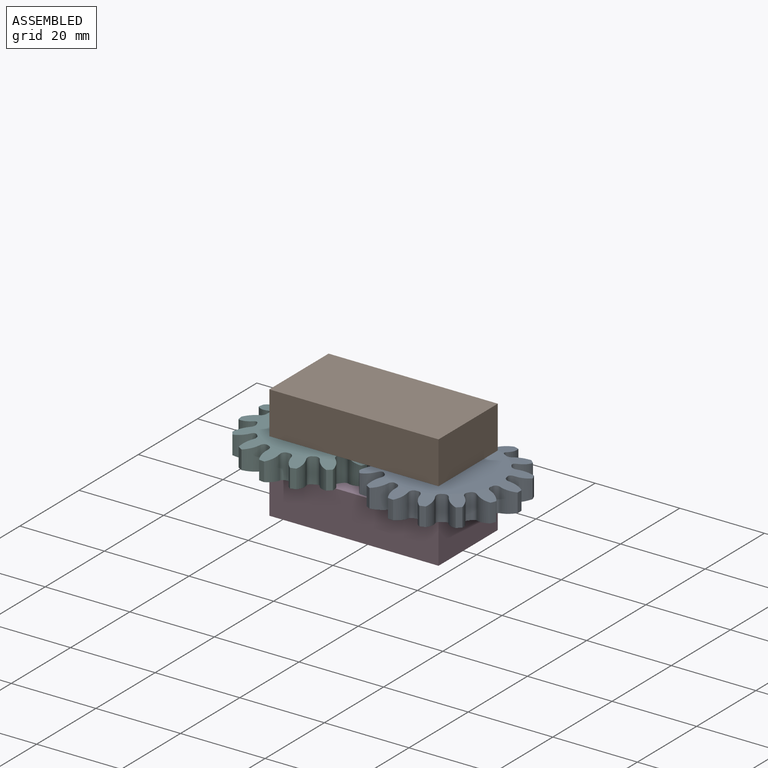
[diagram: assembled view]
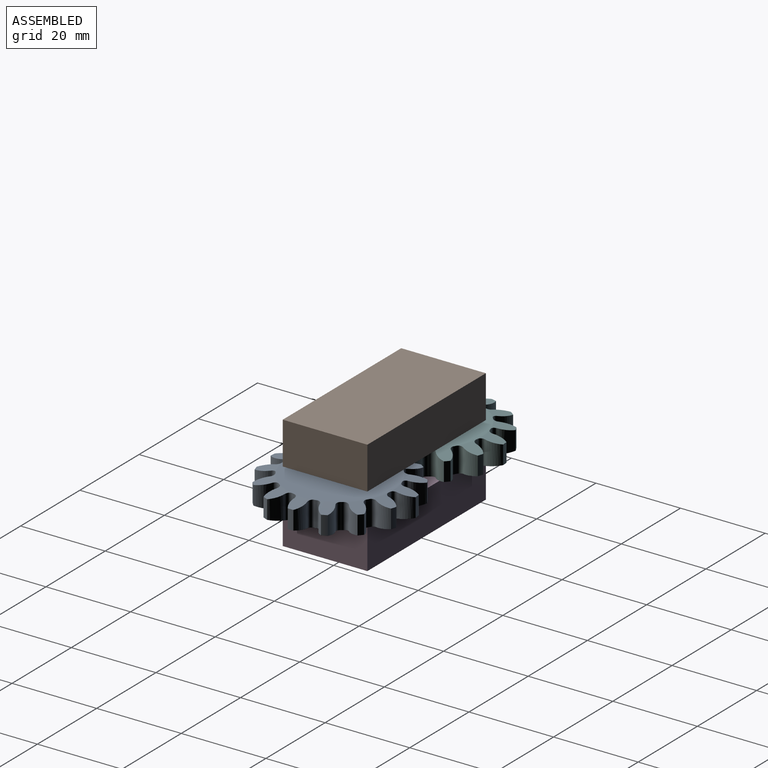
[diagram: assembled view, second angle]
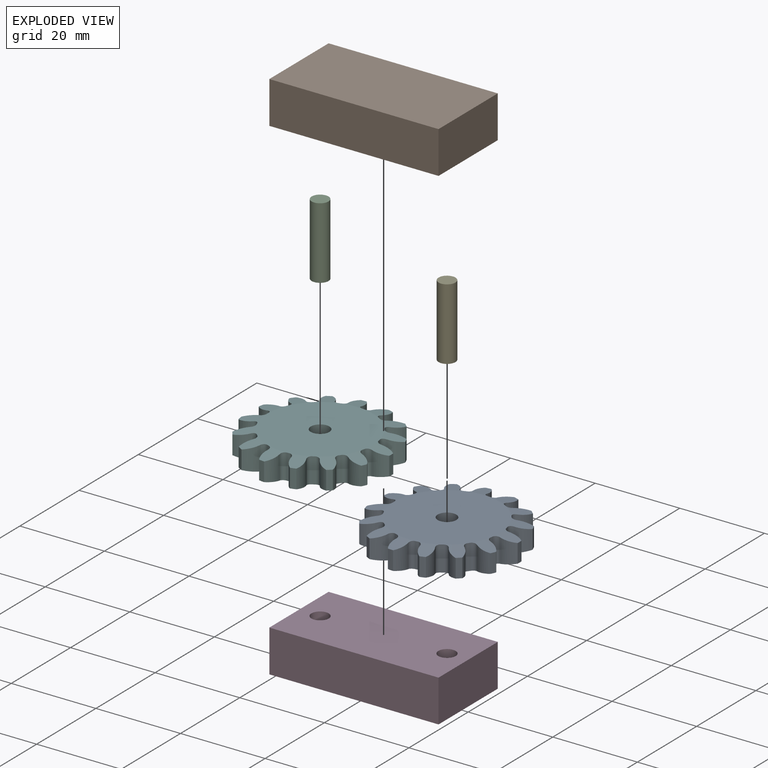
[diagram: exploded view]
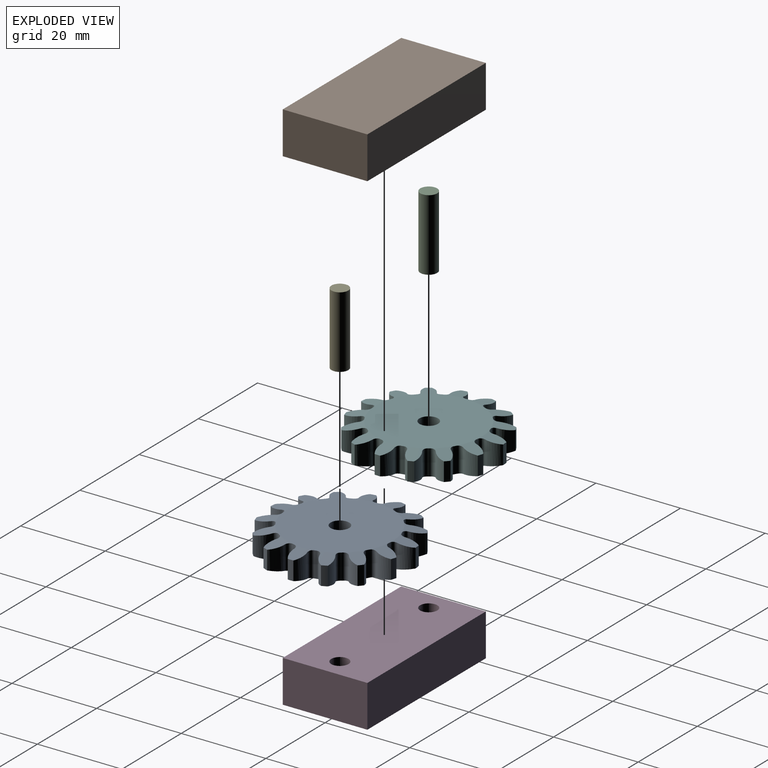
[diagram: exploded view, second angle]
ASSEMBLY  parts=6 mates=5
PART A: 123 faces, bbox 34x6x34 mm
  f0: plane 25x25mm, normal (0,-1,0), area 475.7mm2, adj f2,f3,f4,f5,f6,f7,f8,f9
  f1: plane 25x25mm, normal (0,1,0), area 475.7mm2, adj f2,f3,f4,f5,f6,f7,f8,f9
  f2: cylinder r=12.5mm len=6mm, axis (0,1,0), area 3.5mm2, adj f0,f1,f20,f91
  f3: cylinder r=12.5mm len=6mm, axis (0,1,0), area 3.5mm2, adj f0,f1,f86,f90
  f4: cylinder r=12.5mm len=6mm, axis (0,1,0), area 3.5mm2, adj f0,f1,f81,f85
  f5: cylinder r=12.5mm len=6mm, axis (0,1,0), area 3.5mm2, adj f0,f1,f76,f80
  f6: cylinder r=12.5mm len=6mm, axis (0,1,0), area 3.5mm2, adj f0,f1,f71,f75
  f7: cylinder r=12.5mm len=6mm, axis (0,1,0), area 3.5mm2, adj f0,f1,f66,f70
  f8: cylinder r=12.5mm len=6mm, axis (0,1,0), area 3.5mm2, adj f0,f1,f61,f65
  f9: cylinder r=12.5mm len=6mm, axis (0,1,0), area 3.5mm2, adj f0,f1,f56,f60
  f10: cylinder r=12.5mm len=6mm, axis (0,1,0), area 3.5mm2, adj f0,f1,f51,f55
  f11: cylinder r=12.5mm len=6mm, axis (0,1,0), area 3.5mm2, adj f0,f1,f46,f50
  f12: cylinder r=12.5mm len=6mm, axis (0,1,0), area 3.5mm2, adj f0,f1,f41,f45
  f13: cylinder r=12.5mm len=6mm, axis (0,1,0), area 3.5mm2, adj f0,f1,f36,f40
  f14: cylinder r=12.5mm len=6mm, axis (0,1,0), area 3.5mm2, adj f0,f1,f31,f35
  f15: cylinder r=12.5mm len=6mm, axis (0,1,0), area 3.5mm2, adj f0,f1,f26,f30
  f16: cylinder r=12.5mm len=6mm, axis (0,1,0), area 3.5mm2, adj f0,f1,f21,f25
  f17: cylinder r=4.49mm len=5.64mm, axis (0,1,0), area 18.9mm2, adj f18,f21,f106,f121
  f18: cylinder r=17mm len=4.41mm, axis (0,1,0), area 5.8mm2, adj f17,f19,f106,f121
  f19: cylinder r=4.49mm len=5.64mm, axis (0,1,0), area 18.9mm2, adj f18,f20,f106,f121
  f20: cylinder r=1mm len=6mm, axis (0,1,0), area 9.2mm2, adj f2,f19,f106,f121
  f21: cylinder r=1mm len=6mm, axis (0,1,0), area 9.2mm2, adj f16,f17,f106,f121
  f22: cylinder r=4.49mm len=5.64mm, axis (0,1,0), area 18.9mm2, adj f23,f26,f105,f120
  f23: cylinder r=17mm len=4.41mm, axis (0,1,0), area 5.8mm2, adj f22,f24,f105,f120
  f24: cylinder r=4.49mm len=5.64mm, axis (0,1,0), area 18.9mm2, adj f23,f25,f105,f120
  f25: cylinder r=1mm len=6mm, axis (0,1,0), area 9.2mm2, adj f16,f24,f105,f120
  f26: cylinder r=1mm len=6mm, axis (0,1,0), area 9.2mm2, adj f15,f22,f105,f120
  f27: cylinder r=4.49mm len=5.64mm, axis (0,1,0), area 18.9mm2, adj f28,f31,f104,f119
  f28: cylinder r=17mm len=4.41mm, axis (0,1,0), area 5.8mm2, adj f27,f29,f104,f119
  f29: cylinder r=4.49mm len=5.64mm, axis (0,1,0), area 18.9mm2, adj f28,f30,f104,f119
  f30: cylinder r=1mm len=6mm, axis (0,1,0), area 9.2mm2, adj f15,f29,f104,f119
  f31: cylinder r=1mm len=6mm, axis (0,1,0), area 9.2mm2, adj f14,f27,f104,f119
  f32: cylinder r=4.49mm len=5.64mm, axis (0,1,0), area 18.9mm2, adj f33,f36,f103,f118
  f33: cylinder r=17mm len=4.41mm, axis (0,1,0), area 5.8mm2, adj f32,f34,f103,f118
  f34: cylinder r=4.49mm len=5.64mm, axis (0,1,0), area 18.9mm2, adj f33,f35,f103,f118
  f35: cylinder r=1mm len=6mm, axis (0,1,0), area 9.2mm2, adj f14,f34,f103,f118
  f36: cylinder r=1mm len=6mm, axis (0,1,0), area 9.2mm2, adj f13,f32,f103,f118
  f37: cylinder r=4.49mm len=5.64mm, axis (0,1,0), area 18.9mm2, adj f38,f41,f102,f117
  f38: cylinder r=17mm len=4.41mm, axis (0,1,0), area 5.8mm2, adj f37,f39,f102,f117
  f39: cylinder r=4.49mm len=5.64mm, axis (0,1,0), area 18.9mm2, adj f38,f40,f102,f117
  f40: cylinder r=1mm len=6mm, axis (0,1,0), area 9.2mm2, adj f13,f39,f102,f117
  f41: cylinder r=1mm len=6mm, axis (0,1,0), area 9.2mm2, adj f12,f37,f102,f117
  f42: cylinder r=4.49mm len=5.64mm, axis (0,1,0), area 18.9mm2, adj f43,f46,f101,f116
  f43: cylinder r=17mm len=4.41mm, axis (0,1,0), area 5.8mm2, adj f42,f44,f101,f116
  f44: cylinder r=4.49mm len=5.64mm, axis (0,1,0), area 18.9mm2, adj f43,f45,f101,f116
  f45: cylinder r=1mm len=6mm, axis (0,1,0), area 9.2mm2, adj f12,f44,f101,f116
  f46: cylinder r=1mm len=6mm, axis (0,1,0), area 9.2mm2, adj f11,f42,f101,f116
  f47: cylinder r=4.49mm len=5.64mm, axis (0,1,0), area 18.9mm2, adj f48,f51,f100,f115
  f48: cylinder r=17mm len=4.41mm, axis (0,1,0), area 5.8mm2, adj f47,f49,f100,f115
  f49: cylinder r=4.49mm len=5.64mm, axis (0,1,0), area 18.9mm2, adj f48,f50,f100,f115
  f50: cylinder r=1mm len=6mm, axis (0,1,0), area 9.2mm2, adj f11,f49,f100,f115
  f51: cylinder r=1mm len=6mm, axis (0,1,0), area 9.2mm2, adj f10,f47,f100,f115
  f52: cylinder r=4.49mm len=5.64mm, axis (0,1,0), area 18.9mm2, adj f53,f56,f99,f114
  f53: cylinder r=17mm len=4.41mm, axis (0,1,0), area 5.8mm2, adj f52,f54,f99,f114
  f54: cylinder r=4.49mm len=5.64mm, axis (0,1,0), area 18.9mm2, adj f53,f55,f99,f114
  f55: cylinder r=1mm len=6mm, axis (0,1,0), area 9.2mm2, adj f10,f54,f99,f114
  f56: cylinder r=1mm len=6mm, axis (0,1,0), area 9.2mm2, adj f9,f52,f99,f114
  f57: cylinder r=4.49mm len=5.64mm, axis (0,1,0), area 18.9mm2, adj f58,f61,f98,f113
  f58: cylinder r=17mm len=4.41mm, axis (0,1,0), area 5.8mm2, adj f57,f59,f98,f113
  f59: cylinder r=4.49mm len=5.64mm, axis (0,1,0), area 18.9mm2, adj f58,f60,f98,f113
  f60: cylinder r=1mm len=6mm, axis (0,1,0), area 9.2mm2, adj f9,f59,f98,f113
  f61: cylinder r=1mm len=6mm, axis (0,1,0), area 9.2mm2, adj f8,f57,f98,f113
  f62: cylinder r=4.49mm len=5.64mm, axis (0,1,0), area 18.9mm2, adj f63,f66,f97,f112
  f63: cylinder r=17mm len=4.41mm, axis (0,1,0), area 5.8mm2, adj f62,f64,f97,f112
  f64: cylinder r=4.49mm len=5.64mm, axis (0,1,0), area 18.9mm2, adj f63,f65,f97,f112
  f65: cylinder r=1mm len=6mm, axis (0,1,0), area 9.2mm2, adj f8,f64,f97,f112
  f66: cylinder r=1mm len=6mm, axis (0,1,0), area 9.2mm2, adj f7,f62,f97,f112
  f67: cylinder r=4.49mm len=5.64mm, axis (0,1,0), area 18.9mm2, adj f68,f71,f96,f111
  f68: cylinder r=17mm len=4.41mm, axis (0,1,0), area 5.8mm2, adj f67,f69,f96,f111
  f69: cylinder r=4.49mm len=5.64mm, axis (0,1,0), area 18.9mm2, adj f68,f70,f96,f111
  f70: cylinder r=1mm len=6mm, axis (0,1,0), area 9.2mm2, adj f7,f69,f96,f111
  f71: cylinder r=1mm len=6mm, axis (0,1,0), area 9.2mm2, adj f6,f67,f96,f111
  f72: cylinder r=4.49mm len=5.64mm, axis (0,1,0), area 18.9mm2, adj f73,f76,f95,f110
  f73: cylinder r=17mm len=4.41mm, axis (0,1,0), area 5.8mm2, adj f72,f74,f95,f110
  f74: cylinder r=4.49mm len=5.64mm, axis (0,1,0), area 18.9mm2, adj f73,f75,f95,f110
  f75: cylinder r=1mm len=6mm, axis (0,1,0), area 9.2mm2, adj f6,f74,f95,f110
  f76: cylinder r=1mm len=6mm, axis (0,1,0), area 9.2mm2, adj f5,f72,f95,f110
  f77: cylinder r=4.49mm len=5.64mm, axis (0,1,0), area 18.9mm2, adj f78,f81,f94,f109
  f78: cylinder r=17mm len=4.41mm, axis (0,1,0), area 5.8mm2, adj f77,f79,f94,f109
  f79: cylinder r=4.49mm len=5.64mm, axis (0,1,0), area 18.9mm2, adj f78,f80,f94,f109
  f80: cylinder r=1mm len=6mm, axis (0,1,0), area 9.2mm2, adj f5,f79,f94,f109
  f81: cylinder r=1mm len=6mm, axis (0,1,0), area 9.2mm2, adj f4,f77,f94,f109
  f82: cylinder r=4.49mm len=5.64mm, axis (0,1,0), area 18.9mm2, adj f83,f86,f93,f108
  f83: cylinder r=17mm len=4.41mm, axis (0,1,0), area 5.8mm2, adj f82,f84,f93,f108
  f84: cylinder r=4.49mm len=5.64mm, axis (0,1,0), area 18.9mm2, adj f83,f85,f93,f108
  f85: cylinder r=1mm len=6mm, axis (0,1,0), area 9.2mm2, adj f4,f84,f93,f108
  f86: cylinder r=1mm len=6mm, axis (0,1,0), area 9.2mm2, adj f3,f82,f93,f108
  f87: cylinder r=4.49mm len=5.64mm, axis (0,1,0), area 18.9mm2, adj f88,f91,f92,f107
  f88: cylinder r=17mm len=4.41mm, axis (0,1,0), area 5.8mm2, adj f87,f89,f92,f107
  f89: cylinder r=4.49mm len=5.64mm, axis (0,1,0), area 18.9mm2, adj f88,f90,f92,f107
  f90: cylinder r=1mm len=6mm, axis (0,1,0), area 9.2mm2, adj f3,f89,f92,f107
  f91: cylinder r=1mm len=6mm, axis (0,1,0), area 9.2mm2, adj f2,f87,f92,f107
  f92: cone r=17.12mm half-angle=80deg, axis (0,-1,0), area 13mm2, adj f1,f87,f88,f89,f90,f91
  f93: cone r=17.12mm half-angle=80deg, axis (0,-1,0), area 13mm2, adj f1,f82,f83,f84,f85,f86
  f94: cone r=17.12mm half-angle=80deg, axis (0,-1,0), area 13mm2, adj f1,f77,f78,f79,f80,f81
  f95: cone r=17.12mm half-angle=80deg, axis (0,-1,0), area 13mm2, adj f1,f72,f73,f74,f75,f76
  f96: cone r=17.12mm half-angle=80deg, axis (0,-1,0), area 13mm2, adj f1,f67,f68,f69,f70,f71
  f97: cone r=17.12mm half-angle=80deg, axis (0,-1,0), area 13mm2, adj f1,f62,f63,f64,f65,f66
  f98: cone r=17.12mm half-angle=80deg, axis (0,-1,0), area 13mm2, adj f1,f57,f58,f59,f60,f61
  f99: cone r=17.12mm half-angle=80deg, axis (0,-1,0), area 13mm2, adj f1,f52,f53,f54,f55,f56
  f100: cone r=17.12mm half-angle=80deg, axis (0,-1,0), area 13mm2, adj f1,f47,f48,f49,f50,f51
  f101: cone r=17.12mm half-angle=80deg, axis (0,-1,0), area 13mm2, adj f1,f42,f43,f44,f45,f46
  f102: cone r=17.12mm half-angle=80deg, axis (0,-1,0), area 13mm2, adj f1,f37,f38,f39,f40,f41
  f103: cone r=17.12mm half-angle=80deg, axis (0,-1,0), area 13mm2, adj f1,f32,f33,f34,f35,f36
  f104: cone r=17.12mm half-angle=80deg, axis (0,-1,0), area 13mm2, adj f1,f27,f28,f29,f30,f31
  f105: cone r=17.12mm half-angle=80deg, axis (0,-1,0), area 13mm2, adj f1,f22,f23,f24,f25,f26
  f106: cone r=17.12mm half-angle=80deg, axis (0,-1,0), area 13mm2, adj f1,f17,f18,f19,f20,f21
  f107: cone r=17.12mm half-angle=80deg, axis (0,1,0), area 13mm2, adj f0,f87,f88,f89,f90,f91
  f108: cone r=17.12mm half-angle=80deg, axis (0,1,0), area 13mm2, adj f0,f82,f83,f84,f85,f86
  f109: cone r=17.12mm half-angle=80deg, axis (0,1,0), area 13mm2, adj f0,f77,f78,f79,f80,f81
  f110: cone r=17.12mm half-angle=80deg, axis (0,1,0), area 13mm2, adj f0,f72,f73,f74,f75,f76
  f111: cone r=17.12mm half-angle=80deg, axis (0,1,0), area 13mm2, adj f0,f67,f68,f69,f70,f71
  f112: cone r=17.12mm half-angle=80deg, axis (0,1,0), area 13mm2, adj f0,f62,f63,f64,f65,f66
  f113: cone r=17.12mm half-angle=80deg, axis (0,1,0), area 13mm2, adj f0,f57,f58,f59,f60,f61
  f114: cone r=17.12mm half-angle=80deg, axis (0,1,0), area 13mm2, adj f0,f52,f53,f54,f55,f56
  f115: cone r=17.12mm half-angle=80deg, axis (0,1,0), area 13mm2, adj f0,f47,f48,f49,f50,f51
  f116: cone r=17.12mm half-angle=80deg, axis (0,1,0), area 13mm2, adj f0,f42,f43,f44,f45,f46
  f117: cone r=17.12mm half-angle=80deg, axis (0,1,0), area 13mm2, adj f0,f37,f38,f39,f40,f41
  f118: cone r=17.12mm half-angle=80deg, axis (0,1,0), area 13mm2, adj f0,f32,f33,f34,f35,f36
  f119: cone r=17.12mm half-angle=80deg, axis (0,1,0), area 13mm2, adj f0,f27,f28,f29,f30,f31
  f120: cone r=17.12mm half-angle=80deg, axis (0,1,0), area 13mm2, adj f0,f22,f23,f24,f25,f26
  f121: cone r=17.12mm half-angle=80deg, axis (0,1,0), area 13mm2, adj f0,f17,f18,f19,f20,f21
  f122: cylinder r=2.2mm len=6mm, axis (0,-1,0), area 82.9mm2, adj f0,f1
PART B: 10 faces, bbox 40x20x10 mm
  f0: plane 40x10mm, normal (0,1,0), area 400mm2, adj f1,f3,f4,f5
  f1: plane 20x10mm, normal (-1,0,0), area 200mm2, adj f0,f2,f4,f5
  f2: plane 40x10mm, normal (0,-1,0), area 400mm2, adj f1,f3,f4,f5
  f3: plane 20x10mm, normal (1,0,0), area 200mm2, adj f0,f2,f4,f5
  f4: plane 40x20mm, normal (0,0,1), area 773.6mm2, adj f0,f1,f2,f3,f6,f8
  f5: plane 40x20mm, normal (0,0,-1), area 800mm2, adj f0,f1,f2,f3
  f6: cylinder r=2.05mm len=5mm, axis (0,0,1), area 64.4mm2, adj f4,f7
  f7: plane 4.1x4.1mm, normal (0,0,1), area 13.2mm2, adj f6
  f8: cylinder r=2.05mm len=5mm, axis (0,0,1), area 64.4mm2, adj f4,f9
  f9: plane 4.1x4.1mm, normal (0,0,1), area 13.2mm2, adj f8
PART C: 3 faces, bbox 4x4x17 mm
  f0: cylinder r=2mm len=17mm, axis (0,0,-1), area 213.6mm2, adj f1,f2
  f1: plane 4x4mm, normal (0,0,1), area 12.6mm2, adj f0
  f2: plane 4x4mm, normal (0,0,-1), area 12.6mm2, adj f0
PART D: same geometry as B
PART E: same geometry as C
PART F: same geometry as A
PLACE A rot(axis=(-0.03,-0.71,0.71),176.3deg) t=(15,0,13)mm
PLACE B rot(axis=(1,0,0),180deg) t=(-20,-10,27)mm
PLACE C t=(-15,-20,5)mm
PLACE D t=(-20,10,0)mm
PLACE E t=(15,-20,5)mm
PLACE F rot(axis=(-1,-0.05,0.05),90.1deg) t=(-15,0,13)mm
MATE fastened B.f6 <-> E.f0  axis (0,0,-1) through (15,0,22)mm
MATE fastened C.f0 <-> D.f8  axis (0,0,-1) through (-15,0,5)mm
MATE revolute F.f2 <-> D.f8  axis (0,0,-1) through (-15,0,10)mm
MATE fastened E.f0 <-> D.f6  axis (0,0,-1) through (15,0,5)mm
MATE revolute A.f2 <-> D.f6  axis (0,0,-1) through (15,0,10)mm
